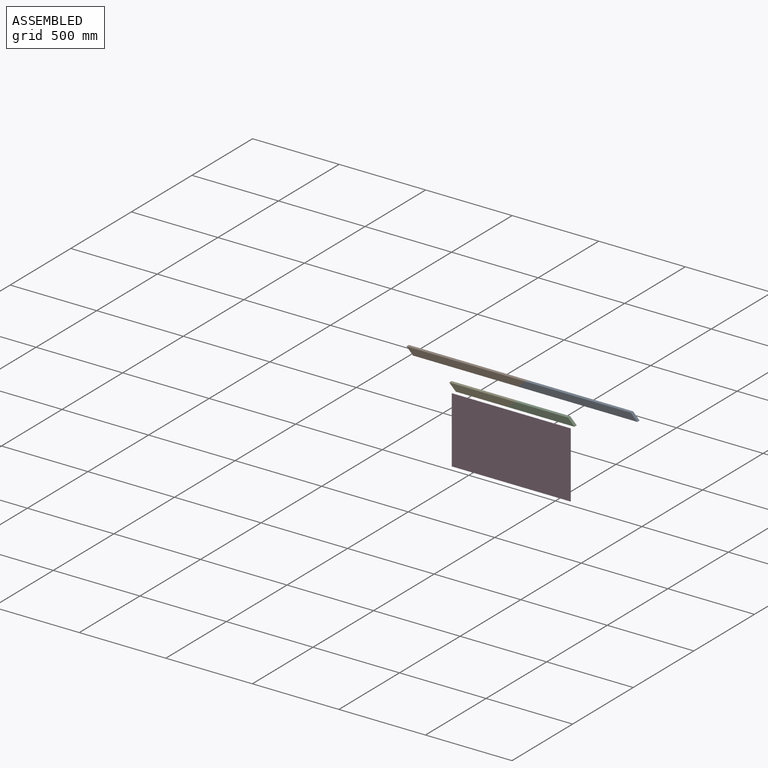
[diagram: assembled view]
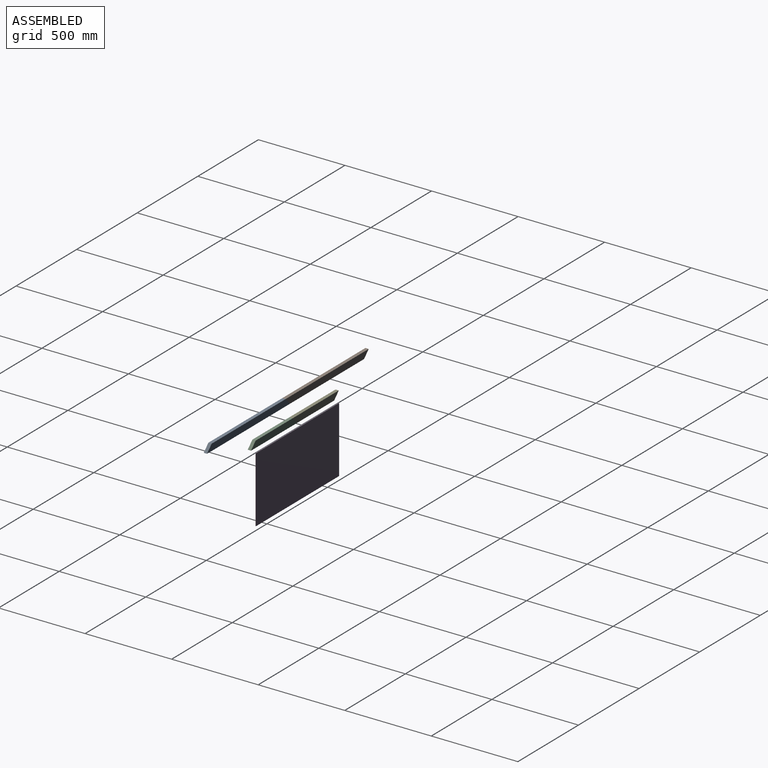
[diagram: assembled view, second angle]
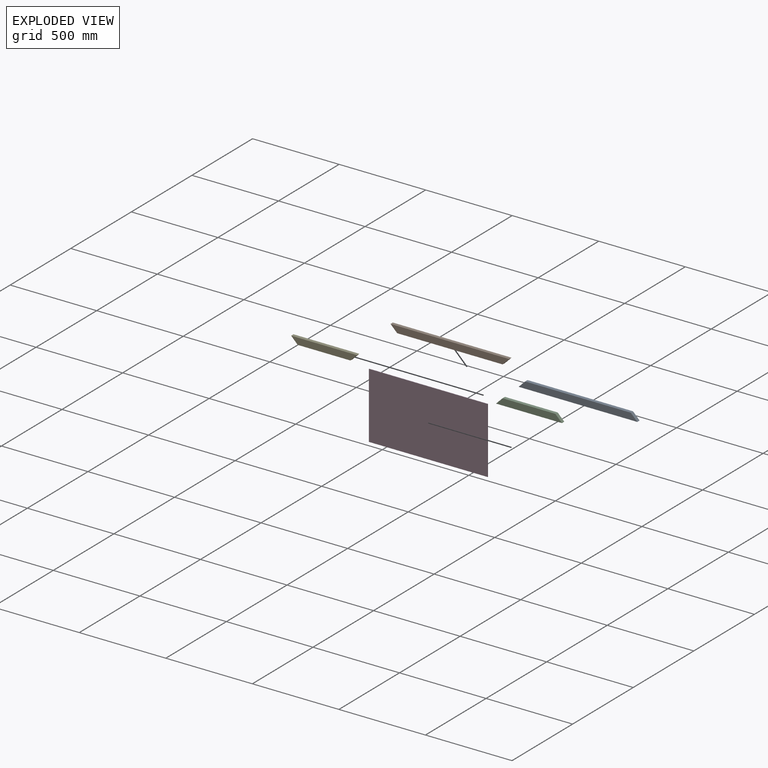
[diagram: exploded view]
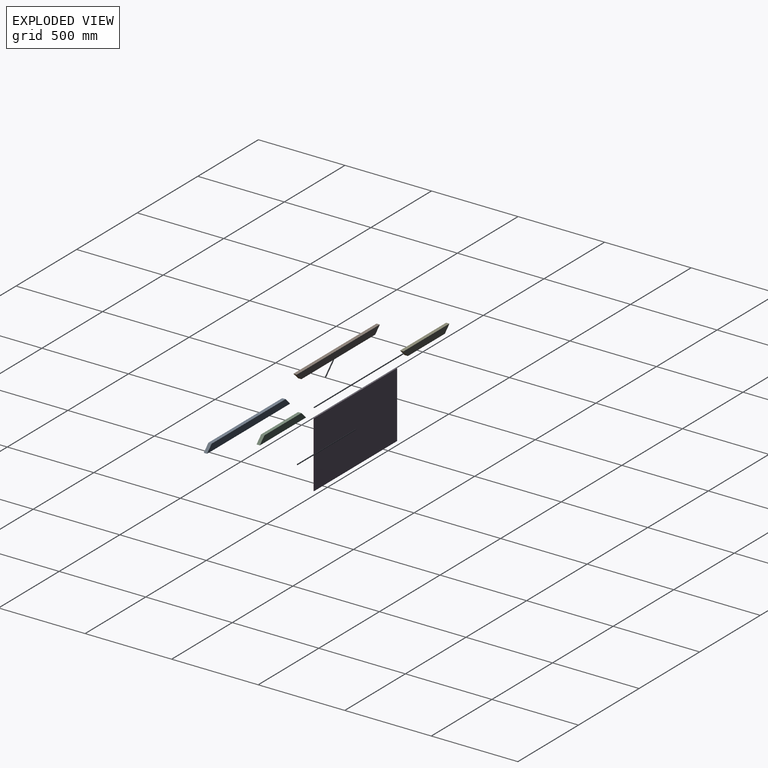
[diagram: exploded view, second angle]
ASSEMBLY  parts=5 mates=2
PART A: 6 faces, bbox 685.8x19.1x38.1 mm
  f0: plane 685.8x19.05mm, normal (0,0,1), area 13064.5mm2, adj f1,f3,f4,f5
  f1: plane 38.1x38.1mm, normal (-0.71,0,-0.71), area 1026.4mm2, adj f0,f2,f4,f5
  f2: plane 609.6x19.05mm, normal (0,0,-1), area 11612.9mm2, adj f1,f3,f4,f5
  f3: plane 38.1x38.1mm, normal (0.71,0,-0.71), area 1026.4mm2, adj f0,f2,f4,f5
  f4: plane 685.8x38.1mm, normal (0,-1,0), area 24677.4mm2, adj f0,f1,f2,f3
  f5: plane 685.8x38.1mm, normal (0,1,0), area 24677.4mm2, adj f0,f1,f2,f3
PART B: same geometry as A
PART C: 6 faces, bbox 38.1x19.1x381 mm
  f0: plane 304.8x19.05mm, normal (1,0,0), area 5806.4mm2, adj f1,f3,f4,f5
  f1: plane 38.1x38.1mm, normal (0.71,0,0.71), area 1026.4mm2, adj f0,f2,f4,f5
  f2: plane 381x19.05mm, normal (-1,0,0), area 7258.1mm2, adj f1,f3,f4,f5
  f3: plane 38.1x38.1mm, normal (0.71,0,-0.71), area 1026.4mm2, adj f0,f2,f4,f5
  f4: plane 381x38.1mm, normal (0,-1,0), area 13064.5mm2, adj f0,f1,f2,f3
  f5: plane 381x38.1mm, normal (0,1,0), area 13064.5mm2, adj f0,f1,f2,f3
PART D: 6 faces, bbox 685.8x3.2x381 mm
  f0: plane 381x3.18mm, normal (1,0,0), area 1209.7mm2, adj f1,f3,f4,f5
  f1: plane 685.8x3.18mm, normal (0,0,1), area 2177.4mm2, adj f0,f2,f4,f5
  f2: plane 381x3.18mm, normal (-1,0,0), area 1209.7mm2, adj f1,f3,f4,f5
  f3: plane 685.8x3.18mm, normal (0,0,-1), area 2177.4mm2, adj f0,f2,f4,f5
  f4: plane 685.8x381mm, normal (0,-1,0), area 261289.8mm2, adj f0,f1,f2,f3
  f5: plane 685.8x381mm, normal (0,1,0), area 261289.8mm2, adj f0,f1,f2,f3
PART E: same geometry as C
PLACE A rot(axis=(0,1,0),180deg) t=(646.27,0,341.81)mm
PLACE B t=(-1.43,0,-1.09)mm
PLACE C rot(axis=(0,-1,0),90deg) t=(435.75,0,371.68)mm
PLACE D t=(246.38,0,-187.96)mm
PLACE E rot(axis=(0,1,0),90deg) t=(92.85,0,-276.02)mm
MATE fastened C.f1 <-> E.f1  axis (-0.71,0,0.71) through (264.3,-12.7,47.83)mm
MATE fastened B.f3 <-> A.f3  axis (0.71,0,-0.71) through (322.42,-12.7,170.36)mm
